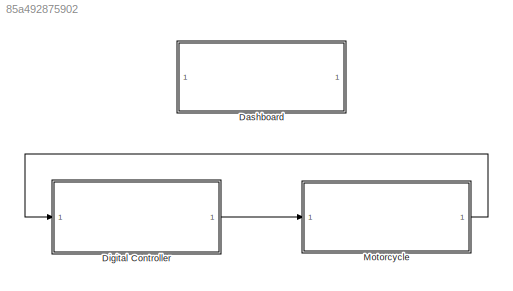
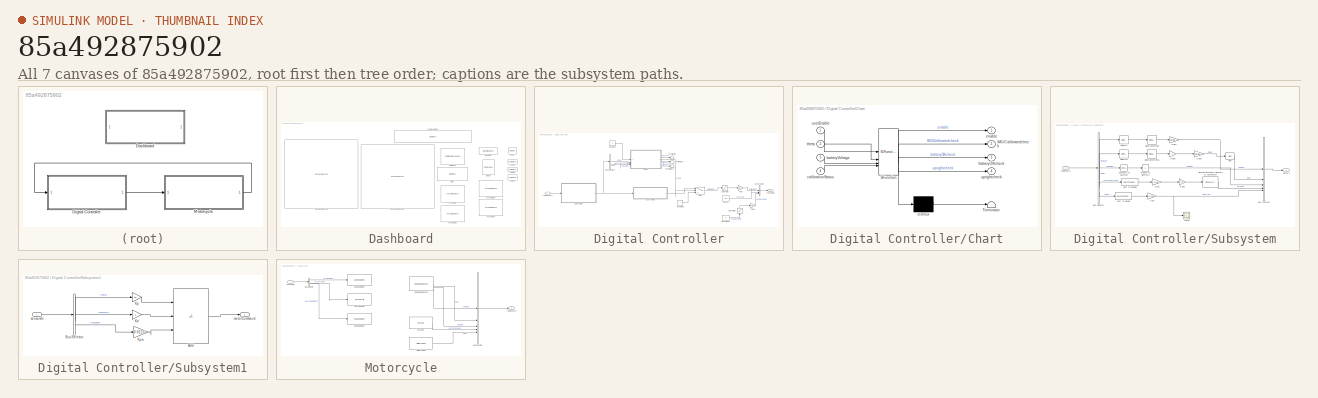
[diagram: thumbnail index - all 7 canvases of the model, root first then tree order]
MODEL slx_85a492875902
KIND model
CONFIG AbsTol = auto
CONFIG EnableMultiTasking = on
CONFIG FixedStep = auto
CONFIG MaxStep = auto
CONFIG MinStep = auto
CONFIG RelTol = 1e-3
CONFIG SampleTimeConstraint = Unconstrained
CONFIG SolverName = FixedStepAuto
CONFIG StartTime = 0.0
CONFIG StopTime = inf
BLOCK [SubSystem] Dashboard
BLOCK [DashboardScope] Dashboard/Dashboard Scope
BLOCK [DashboardScope] Dashboard/Dashboard Scope1
BLOCK [DisplayBlock] Dashboard/Display
  LabelPosition = Bottom
  Transparency = 1
BLOCK [SemiCircularGaugeBlock] Dashboard/Half Gauge
  ScaleMax = 120
  ScaleMin = 60
BLOCK [LampBlock] Dashboard/Lamp1
  LabelPosition = Bottom
BLOCK [LampBlock] Dashboard/Lamp2
  LabelPosition = Bottom
BLOCK [LampBlock] Dashboard/Lamp3
  LabelPosition = Bottom
BLOCK [PushButtonBlock] Dashboard/Push Button
  ButtonText = Forward
  Icon = CruiseControl
  LabelPosition = Bottom
  OffValue = 0.000000
  OnValue = 0.5
BLOCK [PushButtonBlock] Dashboard/Push Button1
  ButtonText = Reverse
  Icon = CruiseControl
  LabelPosition = Bottom
  OffValue = 0.000000
  OnValue = -0.45
BLOCK [PushButtonBlock] Dashboard/Push Button2
  ButtonText = Stright
  ButtonType = Latch
  Icon = Triangle
  LabelPosition = Bottom
  OffValue = 63.819203
  OnValue = 90
BLOCK [PushButtonBlock] Dashboard/Push Button3
  ButtonText = stop
  ButtonType = Latch
  Icon = Triangle
  LabelPosition = Bottom
  OffValue = -1.000000
  OnValue = 0
BLOCK [LampBlock] Dashboard/Ready
  Icon = Check3
  LabelPosition = Bottom
BLOCK [SliderBlock] Dashboard/Rearwheelmotor
  ScaleMax = 1
  ScaleMin = -1
BLOCK [SliderBlock] Dashboard/Slider
  ScaleMax = 120
  ScaleMin = 60
BLOCK [SliderSwitchBlock] Dashboard/Slider Switch
BLOCK [SubSystem] Digital Controller
BLOCK [BusCreator] Digital Controller/Bus Creator
  DisplayOption = bar
  InheritFromInputs = on
  Inputs = 3
BLOCK [BusSelector] Digital Controller/Bus Selector1
  OutputSignals = theta,IMUStatus,battery Volt
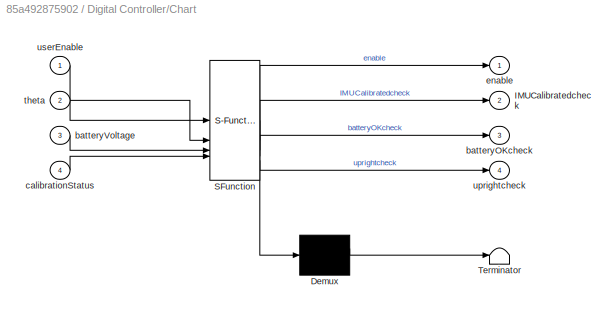
BLOCK [SubSystem] Digital Controller/Chart
  ErrorFcn = Stateflow.Translate.translate
  PermitHierarchicalResolution = ExplicitOnly
  SFBlockType = Chart
  TreatAsAtomicUnit = on
BLOCK [Demux] Digital Controller/Chart/ Demux 
  Outputs = 1
BLOCK [S-Function] Digital Controller/Chart/ SFunction 
  EnableBusSupport = on
  FunctionName = sf_sfun
  PortCounts = [4 5]
  SFcnIsStateOwnerBlock = off
  SFunctionDeploymentMode = off
  Tag = Stateflow S-Function 3
BLOCK [Terminator] Digital Controller/Chart/ Terminator 
BLOCK [Outport] Digital Controller/Chart/IMUCalibratedcheck
  Port = 2
BLOCK [Outport] Digital Controller/Chart/batteryOKcheck
  Port = 3
BLOCK [Inport] Digital Controller/Chart/batteryVoltage
  Port = 3
BLOCK [Inport] Digital Controller/Chart/calibrationStatus
  Port = 4
BLOCK [Outport] Digital Controller/Chart/enable
BLOCK [Inport] Digital Controller/Chart/theta
  Port = 2
BLOCK [Outport] Digital Controller/Chart/uprightcheck
  Port = 4
BLOCK [Inport] Digital Controller/Chart/userEnable
BLOCK [Constant] Digital Controller/Constant
  Value = 0
BLOCK [Constant] Digital Controller/Constant2
  SampleTime = 0.01
  Value = 0
BLOCK [Gain] Digital Controller/Gain
  Gain = 255
BLOCK [Gain] Digital Controller/Gain1
  Gain = 100
BLOCK [Saturate] Digital Controller/Saturation
  LowerLimit = -1
  UpperLimit = 1
BLOCK [Saturate] Digital Controller/Saturation1
  LowerLimit = -1
  NameLocation = right
  UpperLimit = 1
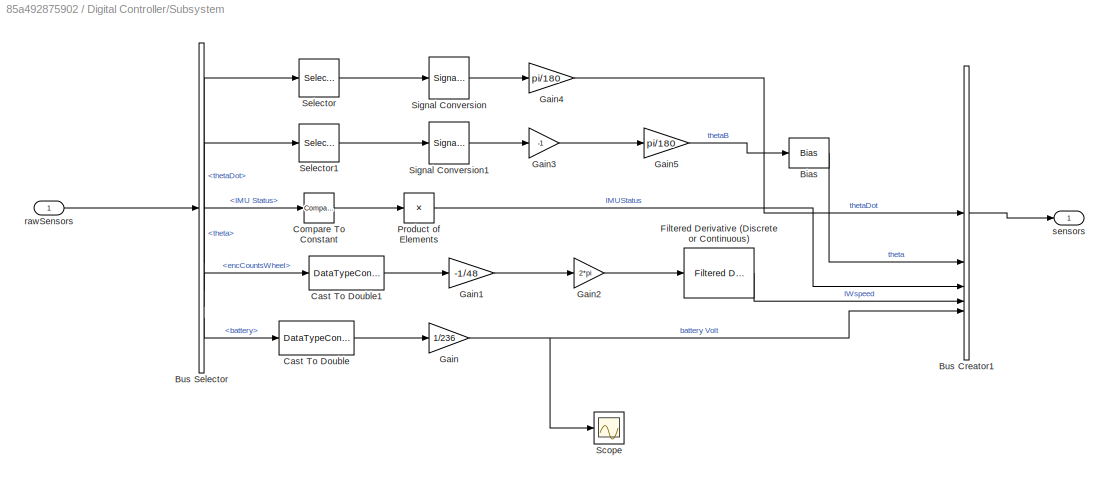
BLOCK [SubSystem] Digital Controller/Subsystem
BLOCK [Bias] Digital Controller/Subsystem/Bias
  SaturateOnIntegerOverflow = off
BLOCK [BusCreator] Digital Controller/Subsystem/Bus Creator1
  DisplayOption = bar
  InheritFromInputs = on
  Inputs = 5
BLOCK [BusSelector] Digital Controller/Subsystem/Bus Selector
  OutputSignals = thetaDot,theta,IMU Status,encCountsWheel,battery
BLOCK [DataTypeConversion] Digital Controller/Subsystem/Cast To Double
  OutDataTypeStr = double
  RndMeth = Floor
  SaturateOnIntegerOverflow = off
BLOCK [DataTypeConversion] Digital Controller/Subsystem/Cast To Double1
  OutDataTypeStr = double
  RndMeth = Floor
  SaturateOnIntegerOverflow = off
BLOCK [Reference] Digital Controller/Subsystem/Compare To Constant  REF=simulink/Logic and Bit
Operations/Compare
To Constant
  SourceBlock = simulink/Logic and Bit\nOperations/Compare\nTo Constant
  SourceType = Compare To Constant
BLOCK [Reference] Digital Controller/Subsystem/Filtered Derivative (Discrete or Continuous)  REF=eeGeneralControl/Filtered Derivative
(Discrete or Continuous)
  SourceBlock = eeGeneralControl/Filtered Derivative\n(Discrete or Continuous)
  SourceType = Filtered Derivative (Discrete or Continuous)
BLOCK [Gain] Digital Controller/Subsystem/Gain
  Gain = 1/236
BLOCK [Gain] Digital Controller/Subsystem/Gain1
  Gain = -1/48
BLOCK [Gain] Digital Controller/Subsystem/Gain2
  Gain = 2*pi
BLOCK [Gain] Digital Controller/Subsystem/Gain3
  Gain = -1
BLOCK [Gain] Digital Controller/Subsystem/Gain4
  Gain = pi/180
BLOCK [Gain] Digital Controller/Subsystem/Gain5
  Gain = pi/180
BLOCK [Product] Digital Controller/Subsystem/Product of Elements
  Inputs = *
BLOCK [Scope] Digital Controller/Subsystem/Scope
  Floating = off
  NumInputPorts = 1
  ScopeSpecificationString = Simulink.scopes.TimeScopeBlockCfg('CurrentConfiguration', extmgr.ConfigurationSet(extmgr.Configuration('Core','General UI',true),extmgr.Configuration('Core','Source UI',true),extmgr.Configuration('Sources','WiredSimulink',true),extmgr.Configuration('Visuals','Time Domain',true),extmgr.Configuration('Tools','Plot Navigation',true),extmgr.Configuration('Tools','Measurements',true)),'Version','2020b'...<+1ch>
BLOCK [Selector] Digital Controller/Subsystem/Selector
  IndexOptions = Index vector (dialog)
  Indices = [2]
  InputPortWidth = 3
  OutputSizes = 1
BLOCK [Selector] Digital Controller/Subsystem/Selector1
  IndexOptions = Index vector (dialog)
  Indices = [2]
  InputPortWidth = 3
  OutputSizes = 1
BLOCK [SignalConversion] Digital Controller/Subsystem/Signal Conversion
  OverrideOpt = off
BLOCK [SignalConversion] Digital Controller/Subsystem/Signal Conversion1
  OverrideOpt = off
BLOCK [Inport] Digital Controller/Subsystem/rawSensors
BLOCK [Outport] Digital Controller/Subsystem/sensors
BLOCK [SubSystem] Digital Controller/Subsystem1
BLOCK [Sum] Digital Controller/Subsystem1/Add
  IconShape = rectangular
  Inputs = ++-
BLOCK [BusSelector] Digital Controller/Subsystem1/Bus Selector
  OutputSignals = theta,thetaDot,IWspeed
BLOCK [Gain] Digital Controller/Subsystem1/Kd
  Gain = 5
BLOCK [Gain] Digital Controller/Subsystem1/Kp
  Gain = 65
BLOCK [Gain] Digital Controller/Subsystem1/Kpw
  Gain = 0.0115
BLOCK [Outport] Digital Controller/Subsystem1/motorCommand
BLOCK [Inport] Digital Controller/Subsystem1/sensorsIn
BLOCK [Switch] Digital Controller/Switch
  Criteria = u2 > Threshold
  InputSameDT = off
  SaturateOnIntegerOverflow = off
BLOCK [Terminator] Digital Controller/Terminator
BLOCK [Terminator] Digital Controller/Terminator1
BLOCK [Terminator] Digital Controller/Terminator2
BLOCK [Outport] Digital Controller/controlCmd
BLOCK [Inport] Digital Controller/rawSensors
BLOCK [Constant] Digital Controller/rearwheel
  SampleTime = 0.01
  Value = 0
BLOCK [Constant] Digital Controller/servo
  SampleTime = 0.01
  Value = 90
BLOCK [SubSystem] Motorcycle
BLOCK [Reference] Motorcycle/BNO055 IMU Sensor  REF=arduinosensorlib/BNO055 IMU Sensor
  SourceBlock = arduinosensorlib/BNO055 IMU Sensor
  SourceType = BNO055
BLOCK [Reference] Motorcycle/Battery Read  REF=arduinomotorcarrierlib/Battery Read
  SourceBlock = arduinomotorcarrierlib/Battery Read
  SourceType = motorcarrier.blocks.mkrmotorcarrier_Battery
BLOCK [BusCreator] Motorcycle/Bus Creator
  DisplayOption = bar
  InheritFromInputs = on
  Inputs = 5
BLOCK [BusSelector] Motorcycle/Bus Selector
  OutputSignals = inertiaWMotor,servoAngle,RearWheelMotor
BLOCK [Reference] Motorcycle/Encoder  REF=arduinomotorcarrierlib/Encoder
  SourceBlock = arduinomotorcarrierlib/Encoder
  SourceType = motorcarrier.blocks.mkrmotorcarrier_Encoder
BLOCK [Reference] Motorcycle/M1 M2 DC Motors  REF=arduinomotorcarrierlib/M1 M2 DC Motors
  SourceBlock = arduinomotorcarrierlib/M1 M2 DC Motors
  SourceType = DC Motor
BLOCK [Reference] Motorcycle/M3 M4 DC Motors  REF=arduinomotorcarrierlib/M3 M4 DC Motors
  SourceBlock = arduinomotorcarrierlib/M3 M4 DC Motors
  SourceType = DC Motor
BLOCK [Reference] Motorcycle/Servo Write1  REF=arduinomotorcarrierlib/Servo Write
  SourceBlock = arduinomotorcarrierlib/Servo Write
  SourceType = MKR Servo Motor
BLOCK [Inport] Motorcycle/controlCmd
BLOCK [Outport] Motorcycle/rawSensors
LINE Digital Controller/Bus Creator:1 -> Digital Controller/controlCmd:1
LINE Digital Controller/Bus Selector1:1 -> Digital Controller/Chart:2
LINE Digital Controller/Bus Selector1:2 -> Digital Controller/Chart:4
LINE Digital Controller/Bus Selector1:3 -> Digital Controller/Chart:3
LINE Digital Controller/Chart:1 -> Digital Controller/Switch:2
LINE Digital Controller/Chart:2 -> Digital Controller/Terminator:1
LINE Digital Controller/Chart:3 -> Digital Controller/Terminator1:1
LINE Digital Controller/Chart:4 -> Digital Controller/Terminator2:1
LINE Digital Controller/Constant2:1 -> Digital Controller/Switch:3
LINE Digital Controller/Constant:1 -> Digital Controller/Chart:1
LINE Digital Controller/Gain1:1 -> Digital Controller/Bus Creator:3
LINE Digital Controller/Gain:1 -> Digital Controller/Bus Creator:1
LINE Digital Controller/Saturation1:1 -> Digital Controller/Gain1:1
LINE Digital Controller/Saturation:1 -> Digital Controller/Gain:1
LINE Digital Controller/Subsystem/Bias:1 -> Digital Controller/Subsystem/Bus Creator1:2
LINE Digital Controller/Subsystem/Bus Creator1:1 -> Digital Controller/Subsystem/sensors:1
LINE Digital Controller/Subsystem/Bus Selector:1 -> Digital Controller/Subsystem/Selector:1
LINE Digital Controller/Subsystem/Bus Selector:2 -> Digital Controller/Subsystem/Selector1:1
LINE Digital Controller/Subsystem/Bus Selector:3 -> Digital Controller/Subsystem/Compare To Constant:1
LINE Digital Controller/Subsystem/Bus Selector:4 -> Digital Controller/Subsystem/Cast To Double1:1
LINE Digital Controller/Subsystem/Bus Selector:5 -> Digital Controller/Subsystem/Cast To Double:1
LINE Digital Controller/Subsystem/Cast To Double1:1 -> Digital Controller/Subsystem/Gain1:1
LINE Digital Controller/Subsystem/Cast To Double:1 -> Digital Controller/Subsystem/Gain:1
LINE Digital Controller/Subsystem/Compare To Constant:1 -> Digital Controller/Subsystem/Product of Elements:1
LINE Digital Controller/Subsystem/Filtered Derivative (Discrete or Continuous):1 -> Digital Controller/Subsystem/Bus Creator1:4
LINE Digital Controller/Subsystem/Gain1:1 -> Digital Controller/Subsystem/Gain2:1
LINE Digital Controller/Subsystem/Gain2:1 -> Digital Controller/Subsystem/Filtered Derivative (Discrete or Continuous):1
LINE Digital Controller/Subsystem/Gain3:1 -> Digital Controller/Subsystem/Gain5:1
LINE Digital Controller/Subsystem/Gain4:1 -> Digital Controller/Subsystem/Bus Creator1:1
LINE Digital Controller/Subsystem/Gain5:1 -> Digital Controller/Subsystem/Bias:1
NET Digital Controller/Subsystem/Gain:1 -> Digital Controller/Subsystem/Bus Creator1:5, Digital Controller/Subsystem/Scope:1
LINE Digital Controller/Subsystem/Product of Elements:1 -> Digital Controller/Subsystem/Bus Creator1:3
LINE Digital Controller/Subsystem/Selector1:1 -> Digital Controller/Subsystem/Signal Conversion1:1
LINE Digital Controller/Subsystem/Selector:1 -> Digital Controller/Subsystem/Signal Conversion:1
LINE Digital Controller/Subsystem/Signal Conversion1:1 -> Digital Controller/Subsystem/Gain3:1
LINE Digital Controller/Subsystem/Signal Conversion:1 -> Digital Controller/Subsystem/Gain4:1
LINE Digital Controller/Subsystem/rawSensors:1 -> Digital Controller/Subsystem/Bus Selector:1
LINE Digital Controller/Subsystem1/Add:1 -> Digital Controller/Subsystem1/motorCommand:1
LINE Digital Controller/Subsystem1/Bus Selector:1 -> Digital Controller/Subsystem1/Kp:1
LINE Digital Controller/Subsystem1/Bus Selector:2 -> Digital Controller/Subsystem1/Kd:1
LINE Digital Controller/Subsystem1/Bus Selector:3 -> Digital Controller/Subsystem1/Kpw:1
LINE Digital Controller/Subsystem1/Kd:1 -> Digital Controller/Subsystem1/Add:2
LINE Digital Controller/Subsystem1/Kp:1 -> Digital Controller/Subsystem1/Add:1
LINE Digital Controller/Subsystem1/Kpw:1 -> Digital Controller/Subsystem1/Add:3
LINE Digital Controller/Subsystem1/sensorsIn:1 -> Digital Controller/Subsystem1/Bus Selector:1
LINE Digital Controller/Subsystem1:1 -> Digital Controller/Switch:1
NET Digital Controller/Subsystem:1 -> Digital Controller/Bus Selector1:1, Digital Controller/Subsystem1:1
LINE Digital Controller/Switch:1 -> Digital Controller/Saturation:1
LINE Digital Controller/rawSensors:1 -> Digital Controller/Subsystem:1
LINE Digital Controller/rearwheel:1 -> Digital Controller/Saturation1:1
LINE Digital Controller/servo:1 -> Digital Controller/Bus Creator:2
LINE Digital Controller:1 -> Motorcycle:1
LINE Motorcycle/BNO055 IMU Sensor:1 -> Motorcycle/Bus Creator:1
LINE Motorcycle/BNO055 IMU Sensor:2 -> Motorcycle/Bus Creator:2
LINE Motorcycle/BNO055 IMU Sensor:3 -> Motorcycle/Bus Creator:3
LINE Motorcycle/Battery Read:1 -> Motorcycle/Bus Creator:5
LINE Motorcycle/Bus Creator:1 -> Motorcycle/rawSensors:1
LINE Motorcycle/Bus Selector:1 -> Motorcycle/M3 M4 DC Motors:1
LINE Motorcycle/Bus Selector:2 -> Motorcycle/Servo Write1:1
LINE Motorcycle/Bus Selector:3 -> Motorcycle/M1 M2 DC Motors:1
LINE Motorcycle/Encoder:1 -> Motorcycle/Bus Creator:4
LINE Motorcycle/controlCmd:1 -> Motorcycle/Bus Selector:1
LINE Motorcycle:1 -> Digital Controller:1
note: NET lines group one-source signal fan-out (src -> all destinations, sorted); 1:1 wires keep LINE
CHART Digital Controller/Chart states=13 transitions=11
  STATE_LABEL 'checkFallen'
  STATE_LABEL 'Fallen\nentry: upright = false;'
  STATE_LABEL 'Standing\nentry: upright = true;'
  STATE_LABEL '[abs(theta)<pi*12/180]'
  STATE_LABEL '[abs(theta) > pi*12/180]'
  STATE_LABEL 'Fallen\nentry: upright = false;'
  STATE_LABEL 'Standing\nentry: upright = true;'
  STATE_LABEL 'checkIMUCalib'
  STATE_LABEL 'imuNotCalibrated\nentry:\nIMUCalibrated = false;'
  STATE_LABEL 'imuCalibrated\nentry:\nIMUCalibrated = true;'
  STATE_LABEL '[calibrationStatus == true]'
  STATE_LABEL 'imuNotCalibrated\nentry:\nIMUCalibrated = false;'
  STATE_LABEL 'imuCalibrated\nentry:\nIMUCalibrated = true;'
  STATE_LABEL 'checkBattery'
  STATE_LABEL 'batteryNotCharged\nentry:\nbatteryOK = false;'
  STATE_LABEL 'batteryCharged\nentry:\nbatteryOK = true;'
  STATE_LABEL '[batteryVoltage > 3.2]'
  STATE_LABEL '[batteryVoltage <= 3.2]'
  STATE_LABEL 'batteryNotCharged\nentry:\nbatteryOK = false;'
  STATE_LABEL 'batteryCharged\nentry:\nbatteryOK = true;'
  STATE_LABEL 'Check\nuprightcheck = upright;\nIMUCalibratedcheck = IMUCalibrated;\nbatteryOKcheck = batteryOK;'
  STATE_LABEL 'calculateEnable'
  STATE_LABEL 'disableControl\nentry:\nenable = false'
  STATE_LABEL 'enableControl\nentry:\nenable = true'
  STATE_LABEL '[userEnable && batteryOK && IMUCalibrated && upright]'
  STATE_LABEL '[not(userEnable) || not(batteryOK) || not(IMUCalibrated) || not(upright)]'
  STATE_LABEL 'disableControl\nentry:\nenable = false'
  STATE_LABEL 'enableControl\nentry:\nenable = true'
CHART  states=0 transitions=0
